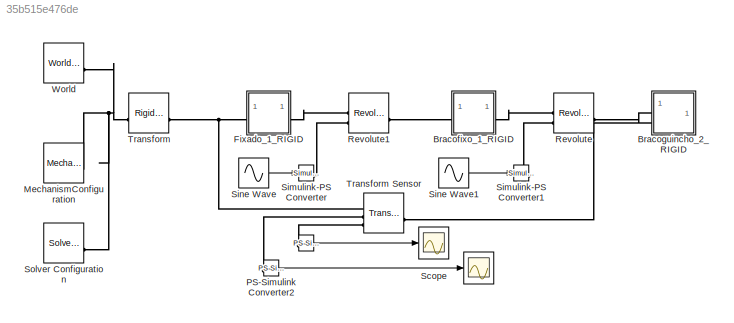
MODEL slx_35b515e476de
KIND model
CONFIG AbsTol = auto
CONFIG EnableMultiTasking = off
CONFIG FixedStep = auto
CONFIG MaxStep = auto
CONFIG MinStep = auto
CONFIG RelTol = 1e-3
CONFIG SampleTimeConstraint = Unconstrained
CONFIG SolverName = VariableStepAuto
CONFIG StartTime = 0.0
CONFIG StopTime = 10
WORKSPACE source: external: MATLAB File  (data not in archive)
BLOCK [Scope]  
  Floating = off
  NumInputPorts = 1
  ScopeSpecificationString = Simulink.scopes.TimeScopeBlockCfg('CurrentConfiguration', extmgr.ConfigurationSet(extmgr.Configuration('Core','General UI',true),extmgr.Configuration('Core','Source UI',true),extmgr.Configuration('Sources','WiredSimulink',true,'DataLoggingVariableName','ScopeData1'),extmgr.Configuration('Visuals','Time Domain',true,'SerializedDisplays',{struct('MinYLimReal','-0.10457','MaxYLimReal','0.10449','YLab...<+1511ch>
BLOCK [Reference]       REF=nesl_utility/PS-Simulink
Converter
  SourceBlock = nesl_utility/PS-Simulink\nConverter
  SourceType = PS-Simulink\nConverter
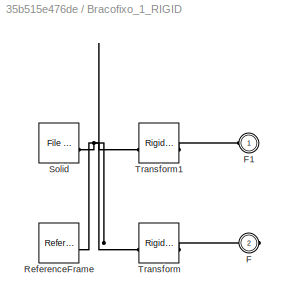
BLOCK [SubSystem] Bracofixo_1_RIGID
BLOCK [PMIOPort] Bracofixo_1_RIGID/F
  Port = 2
  Side = Right
BLOCK [PMIOPort] Bracofixo_1_RIGID/F1
  Side = Left
BLOCK [Reference] Bracofixo_1_RIGID/ReferenceFrame  REF=sm_lib/Frames and
Transforms/Reference
Frame
  SourceBlock = sm_lib/Frames and\nTransforms/Reference\nFrame
  SourceType = Reference\nFrame
BLOCK [Reference] Bracofixo_1_RIGID/Solid  REF=sm_lib/Body Elements/File Solid
  SourceBlock = sm_lib/Body Elements/File Solid
  SourceType = File Solid
BLOCK [Reference] Bracofixo_1_RIGID/Transform  REF=sm_lib/Frames and
Transforms/Rigid
Transform
  SourceBlock = sm_lib/Frames and\nTransforms/Rigid\nTransform
  SourceType = Rigid\nTransform
BLOCK [Reference] Bracofixo_1_RIGID/Transform1  REF=sm_lib/Frames and
Transforms/Rigid
Transform
  SourceBlock = sm_lib/Frames and\nTransforms/Rigid\nTransform
  SourceType = Rigid\nTransform
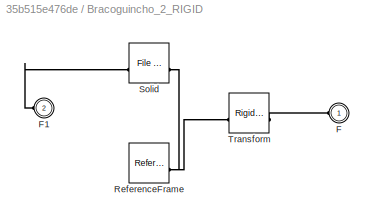
BLOCK [SubSystem] Bracoguincho_2_RIGID
BLOCK [PMIOPort] Bracoguincho_2_RIGID/F
  Side = Left
BLOCK [PMIOPort] Bracoguincho_2_RIGID/F1
  Port = 2
  Side = Left
BLOCK [Reference] Bracoguincho_2_RIGID/ReferenceFrame  REF=sm_lib/Frames and
Transforms/Reference
Frame
  SourceBlock = sm_lib/Frames and\nTransforms/Reference\nFrame
  SourceType = Reference\nFrame
BLOCK [Reference] Bracoguincho_2_RIGID/Solid  REF=sm_lib/Body Elements/File Solid
  SourceBlock = sm_lib/Body Elements/File Solid
  SourceType = File Solid
BLOCK [Reference] Bracoguincho_2_RIGID/Transform  REF=sm_lib/Frames and
Transforms/Rigid
Transform
  SourceBlock = sm_lib/Frames and\nTransforms/Rigid\nTransform
  SourceType = Rigid\nTransform
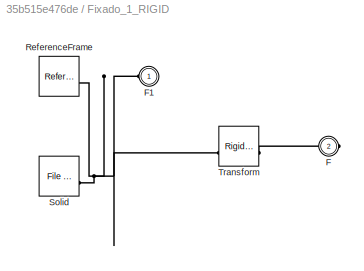
BLOCK [SubSystem] Fixado_1_RIGID
BLOCK [PMIOPort] Fixado_1_RIGID/F
  Port = 2
  Side = Right
BLOCK [PMIOPort] Fixado_1_RIGID/F1
  Side = Left
BLOCK [Reference] Fixado_1_RIGID/ReferenceFrame  REF=sm_lib/Frames and
Transforms/Reference
Frame
  SourceBlock = sm_lib/Frames and\nTransforms/Reference\nFrame
  SourceType = Reference\nFrame
BLOCK [Reference] Fixado_1_RIGID/Solid  REF=sm_lib/Body Elements/File Solid
  SourceBlock = sm_lib/Body Elements/File Solid
  SourceType = File Solid
BLOCK [Reference] Fixado_1_RIGID/Transform  REF=sm_lib/Frames and
Transforms/Rigid
Transform
  SourceBlock = sm_lib/Frames and\nTransforms/Rigid\nTransform
  SourceType = Rigid\nTransform
BLOCK [Reference] MechanismConfiguration  REF=sm_lib/Utilities/Mechanism
Configuration
  SourceBlock = sm_lib/Utilities/Mechanism\nConfiguration
  SourceType = Mechanism\nConfiguration
BLOCK [Reference] PS-Simulink Converter2  REF=nesl_utility/PS-Simulink
Converter
  SourceBlock = nesl_utility/PS-Simulink\nConverter
  SourceType = PS-Simulink\nConverter
BLOCK [Reference] Revolute  REF=sm_lib/Joints/Revolute Joint
  SourceBlock = sm_lib/Joints/Revolute Joint
  SourceType = Revolute Joint
BLOCK [Reference] Revolute1  REF=sm_lib/Joints/Revolute Joint
  SourceBlock = sm_lib/Joints/Revolute Joint
  SourceType = Revolute Joint
BLOCK [Scope] Scope
  Floating = off
  NumInputPorts = 1
  ScopeSpecificationString = Simulink.scopes.TimeScopeBlockCfg('CurrentConfiguration', extmgr.ConfigurationSet(extmgr.Configuration('Core','General UI',true),extmgr.Configuration('Core','Source UI',true),extmgr.Configuration('Sources','WiredSimulink',true),extmgr.Configuration('Visuals','Time Domain',true,'SerializedDisplays',{struct('MinYLimReal','-0.11785','MaxYLimReal','0.11785','YLabelReal','','MinYLimMag','0.00000','MaxY...<+1472ch>
BLOCK [Reference] Simulink-PS Converter  REF=nesl_utility/Simulink-PS
Converter
  SourceBlock = nesl_utility/Simulink-PS\nConverter
  SourceType = Simulink-PS\nConverter
BLOCK [Reference] Simulink-PS Converter1  REF=nesl_utility/Simulink-PS
Converter
  SourceBlock = nesl_utility/Simulink-PS\nConverter
  SourceType = Simulink-PS\nConverter
BLOCK [Sin] Sine Wave
  Amplitude = pi/3
  SampleTime = 0
BLOCK [Sin] Sine Wave1
  Amplitude = pi/2
  SampleTime = 0
BLOCK [Reference] Solver Configuration  REF=nesl_utility/Solver
Configuration
  SourceBlock = nesl_utility/Solver\nConfiguration
  SourceType = Solver\nConfiguration
BLOCK [Reference] Transform  REF=sm_lib/Frames and
Transforms/Rigid
Transform
  SourceBlock = sm_lib/Frames and\nTransforms/Rigid\nTransform
  SourceType = Rigid\nTransform
BLOCK [Reference] Transform Sensor  REF=sm_lib/Frames and
Transforms/Transform
Sensor
  SourceBlock = sm_lib/Frames and\nTransforms/Transform\nSensor
  SourceType = Transform\nSensor
BLOCK [Reference] World  REF=sm_lib/Frames and
Transforms/World Frame
  SourceBlock = sm_lib/Frames and\nTransforms/World Frame
  SourceType = World Frame
LINE     :1 -> Scope:1
LINE PS-Simulink Converter2:1 ->  :1
LINE Sine Wave1:1 -> Simulink-PS Converter1:1
LINE Sine Wave:1 -> Simulink-PS Converter:1
PLINE     :LConn1 -- Transform Sensor:RConn3
PLINE Bracofixo_1_RIGID/F1:RConn1 -- Bracofixo_1_RIGID/Transform1:RConn1
PLINE Bracofixo_1_RIGID/F:RConn1 -- Bracofixo_1_RIGID/Transform:RConn1
PNET net1: Bracofixo_1_RIGID/ReferenceFrame:RConn1 -- Bracofixo_1_RIGID/Solid:RConn1 -- Bracofixo_1_RIGID/Transform1:LConn1 -- Bracofixo_1_RIGID/Transform:LConn1
PLINE Bracofixo_1_RIGID:LConn1 -- Revolute1:RConn1
PLINE Bracofixo_1_RIGID:RConn1 -- Revolute:LConn1
PLINE Bracoguincho_2_RIGID/F1:RConn1 -- Bracoguincho_2_RIGID/Solid:LConn1
PLINE Bracoguincho_2_RIGID/F:RConn1 -- Bracoguincho_2_RIGID/Transform:RConn1
PNET net2: Bracoguincho_2_RIGID/ReferenceFrame:RConn1 -- Bracoguincho_2_RIGID/Solid:RConn1 -- Bracoguincho_2_RIGID/Transform:LConn1
PLINE Bracoguincho_2_RIGID:LConn1 -- Revolute:RConn1
PLINE Bracoguincho_2_RIGID:LConn2 -- Transform Sensor:LConn1
PNET net3: Fixado_1_RIGID/F1:RConn1 -- Fixado_1_RIGID/ReferenceFrame:RConn1 -- Fixado_1_RIGID/Solid:RConn1 -- Fixado_1_RIGID/Transform:LConn1
PLINE Fixado_1_RIGID/F:RConn1 -- Fixado_1_RIGID/Transform:RConn1
PNET net4: Fixado_1_RIGID:LConn1 -- Transform Sensor:RConn1 -- Transform:RConn1
PLINE Fixado_1_RIGID:RConn1 -- Revolute1:LConn1
PNET net5: MechanismConfiguration:RConn1 -- Solver Configuration:RConn1 -- Transform:LConn1 -- World:RConn1
PLINE PS-Simulink Converter2:LConn1 -- Transform Sensor:RConn2
PLINE Revolute1:LConn2 -- Simulink-PS Converter:RConn1
PLINE Revolute:LConn2 -- Simulink-PS Converter1:RConn1
note: PNET lines group multi-terminal physical nets as a canonical sorted terminal list (undirected conserving connections); 2-terminal nets keep the pairwise PLINE form
